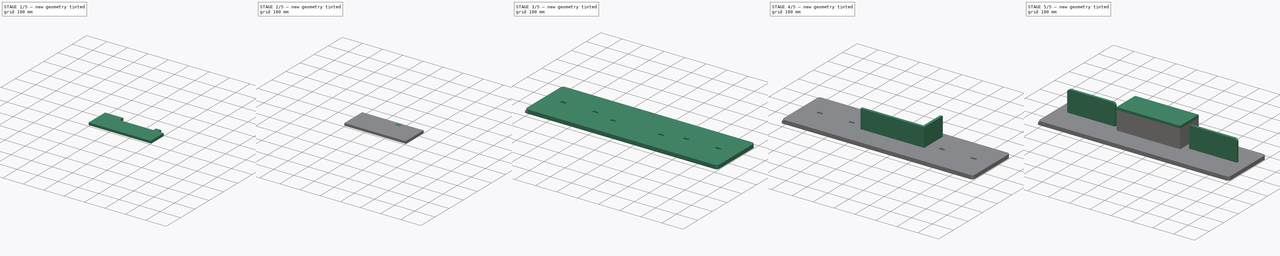
[diagram: build sequence overview — one tinted view per stage of 5, left to right]
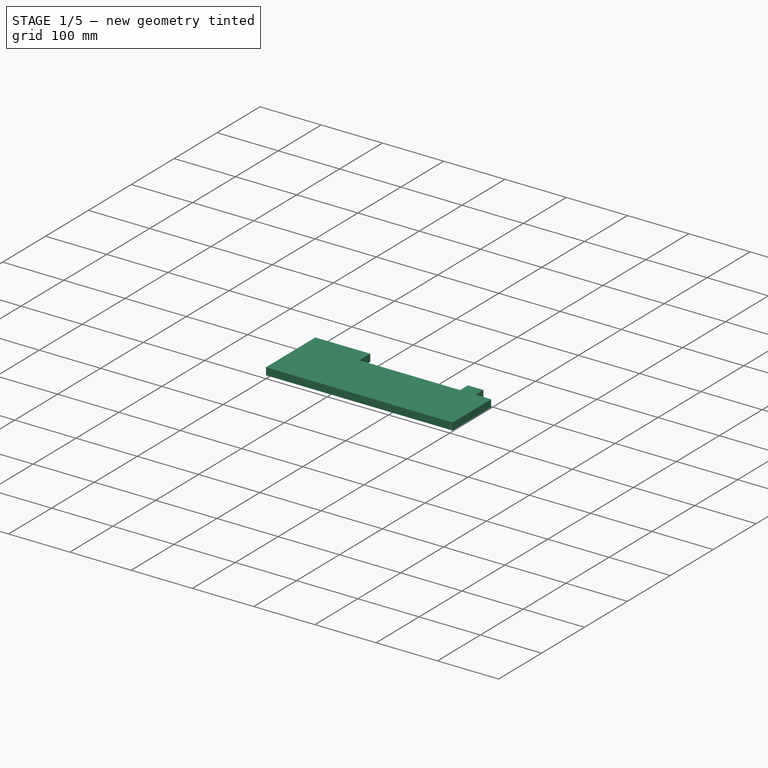
[diagram: stage 1 of 5 — iso view after this stage's code; geometry added in this stage tinted green]
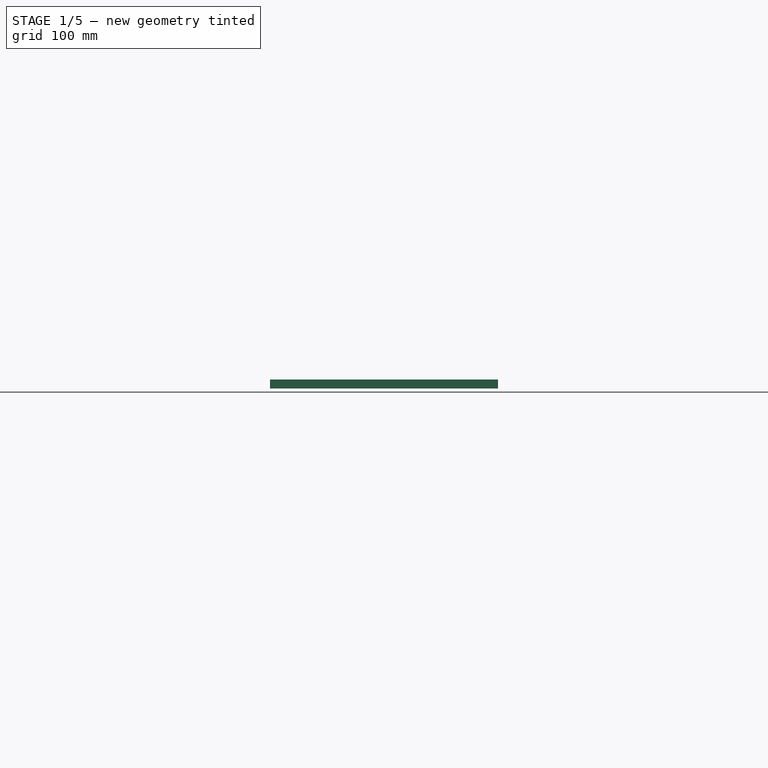
[diagram: stage 1 of 5 — front view after this stage's code; geometry added in this stage tinted green]
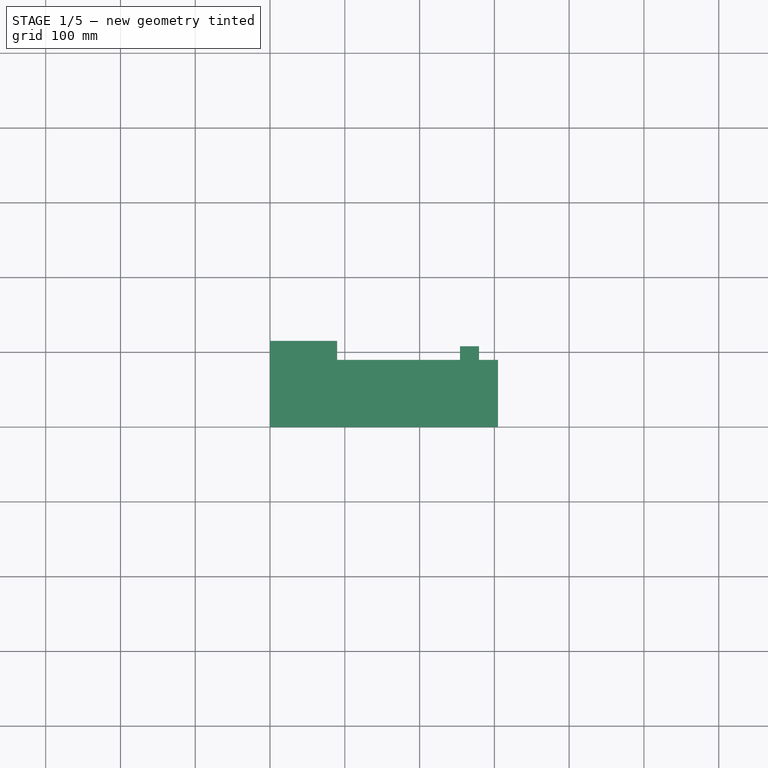
[diagram: stage 1 of 5 — top view after this stage's code; geometry added in this stage tinted green]
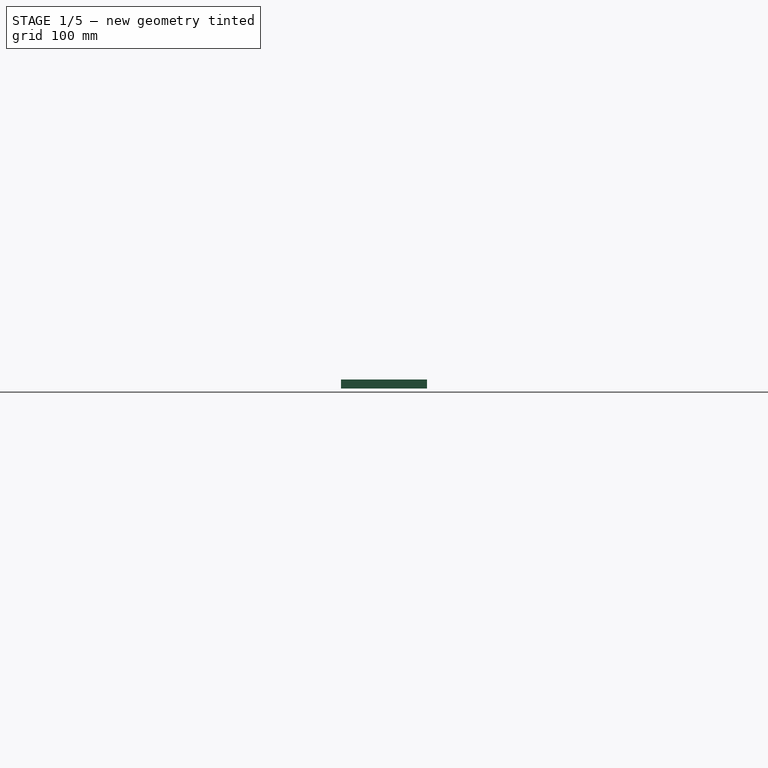
[diagram: stage 1 of 5 — right view after this stage's code; geometry added in this stage tinted green]
FCSTD DOCUMENT  (FreeCAD 0.18R13548 (Git))
Label: CoatHanger2
License: All rights reserved
LicenseURL: http://en.wikipedia.org/wiki/All_rights_reserved
objects: PartDesign::FeatureBase×14, Sketcher::SketchObject×5, PartDesign::Pad×5, PartDesign::Body×5, App::Part×2, Spreadsheet::Sheet×1, PartDesign::Fillet×1
note: 35 computed .brp shape members not serialized (recipe doc carries the construction recipe); baked Part::Feature solids carry a one-line shape summary decoded from their .brp

FEATURE [PartDesign::Body] Body002  label="BoxFrontBody"
  Group = -> [Sketch002,Pad002]
  Origin = -> Origin002
  Tip = -> Pad002
FEATURE [Sketcher::SketchObject] Sketch003  label="BoxSidesSketch"
  MapMode = 5
  Support = -> [XY_Plane003]
  expr: Constraints[10] = Dimensions.HeightBox - Dimensions.ThicknessBox
  expr: Constraints[9] = Dimensions.Depth - Dimensions.ThicknessBox
  sketch-geometry (4):
    g0: LineSegment StartX=0 StartY=0 StartZ=0 EndX=89.6937 EndY=0 EndZ=0
    g1: LineSegment StartX=89.6937 StartY=0 StartZ=0 EndX=89.6937 EndY=115.094 EndZ=0
    g2: LineSegment StartX=89.6937 StartY=115.094 StartZ=0 EndX=0 EndY=115.094 EndZ=0
    g3: LineSegment StartX=0 StartY=115.094 StartZ=0 EndX=0 EndY=0 EndZ=0
  constraints (11):
    c: Coincident(g0,g1)
    c: Coincident(g1,g2)
    c: Coincident(g2,g3)
    c: Coincident(g3,g0)
    c: Horizontal(g0)
    c: Horizontal(g2)
    c: Vertical(g1)
    c: Vertical(g3)
    c: Coincident(g0,g-1)
    c: DistanceX(g0,g0) = 89.6937
    c: DistanceY(g3,g3) = 115.094
FEATURE [PartDesign::Pad] Pad003  label="BoxSidesPad"
  Length = 11.9062
  Length2 = 100
  Profile = -> Sketch003
  Type = 0
  expr: Length = Dimensions.ThicknessBox
FEATURE [PartDesign::Body] Body003  label="BoxSidesBody"
  Group = -> [Sketch003,Pad003]
  Origin = -> Origin003
  Tip = -> Pad003
FEATURE [Sketcher::SketchObject] Sketch004  label="BoxBottomSketch"
  MapMode = 5
  Support = -> [XY_Plane004]
  expr: Constraints[10] = Dimensions.Depth - Dimensions.ThicknessBox
  expr: Constraints[9] = Dimensions.WidthBox
  expr: Constraints[27] = Dimensions.PlywoodThickness
  expr: Constraints[29] = Dimensions.LengthTab
  expr: Constraints[31] = Dimensions.OffsetTabToEdge
  sketch-geometry (12):
    g0: LineSegment StartX=0 StartY=0 StartZ=0 EndX=304.8 EndY=0 EndZ=0
    g1: LineSegment StartX=304.8 StartY=0 StartZ=0 EndX=304.8 EndY=89.6937 EndZ=0
    g2: LineSegment StartX=304.8 StartY=89.6937 StartZ=0 EndX=279.4 EndY=89.6937 EndZ=0
    g3: LineSegment StartX=0 StartY=89.6937 StartZ=0 EndX=0 EndY=0 EndZ=0
    g4: LineSegment StartX=25.4 StartY=89.6937 StartZ=0 EndX=25.4 EndY=107.95 EndZ=0
    g5: LineSegment StartX=25.4 StartY=107.95 StartZ=0 EndX=50.8 EndY=107.95 EndZ=0
    g6: LineSegment StartX=50.8 StartY=107.95 StartZ=0 EndX=50.8 EndY=89.6937 EndZ=0
    g7: LineSegment StartX=254 StartY=89.6937 StartZ=0 EndX=254 EndY=107.95 EndZ=0
    g8: LineSegment StartX=254 StartY=107.95 StartZ=0 EndX=279.4 EndY=107.95 EndZ=0
    g9: LineSegment StartX=279.4 StartY=107.95 StartZ=0 EndX=279.4 EndY=89.6937 EndZ=0
    g10: LineSegment StartX=25.4 StartY=89.6937 StartZ=0 EndX=0 EndY=89.6937 EndZ=0
    g11: LineSegment StartX=254 StartY=89.6937 StartZ=0 EndX=50.8 EndY=89.6937 EndZ=0
  constraints (33):
    c: Coincident(g0,g1)
    c: Coincident(g1,g2)
    c: Coincident(g10,g3)
    c: Coincident(g3,g0)
    c: Horizontal(g0)
    c: Horizontal(g2)
    c: Vertical(g1)
    c: Vertical(g3)
    c: Coincident(g0,g-1)
    c: DistanceX(g0,g0) = 304.8
    c: DistanceY(g3,g3) = 89.6937
    c: Vertical(g4)
    c: Coincident(g5,g4)
    c: Horizontal(g5)
    c: Coincident(g6,g5)
    c: Vertical(g6)
    c: Vertical(g7)
    c: Coincident(g8,g7)
    c: Horizontal(g8)
    c: Coincident(g9,g8)
    c: Vertical(g9)
    c: Coincident(g11,g6)
    c: Coincident(g10,g4)
    c: Tangent(g2,g10)
    c: Coincident(g2,g9)
    c: Coincident(g11,g7)
    c: Tangent(g2,g11)
    c: DistanceY(g4,g4) = 18.2563
    c: Equal(g4,g7)
    c: DistanceX(g5,g5) = 25.4
    c: Equal(g5,g8)
    c: DistanceX(g2,g2) = 25.4
    c: Equal(g2,g10)
FEATURE [PartDesign::Pad] Pad004  label="BoxBottomPad"
  Length = 11.9062
  Length2 = 100
  Profile = -> Sketch004
  Type = 0
  expr: Length = Dimensions.ThicknessBox
FEATURE [PartDesign::FeatureBase] Clone012  label="BoxSidesCutoutClone002"
  BaseFeature = -> Pad003
FEATURE [PartDesign::FeatureBase] Clone013  label="BoxBottomCutoutClone"
  BaseFeature = -> Pad004
FEATURE [App::Part] Part001  label="Cutout"
  Group = -> [Clone007,Clone008,Clone009,Clone010,Clone011,Clone012,Clone013]
  License = CC BY 3.0
  LicenseURL = http://creativecommons.org/licenses/by/3.0/
  Origin = -> Origin006
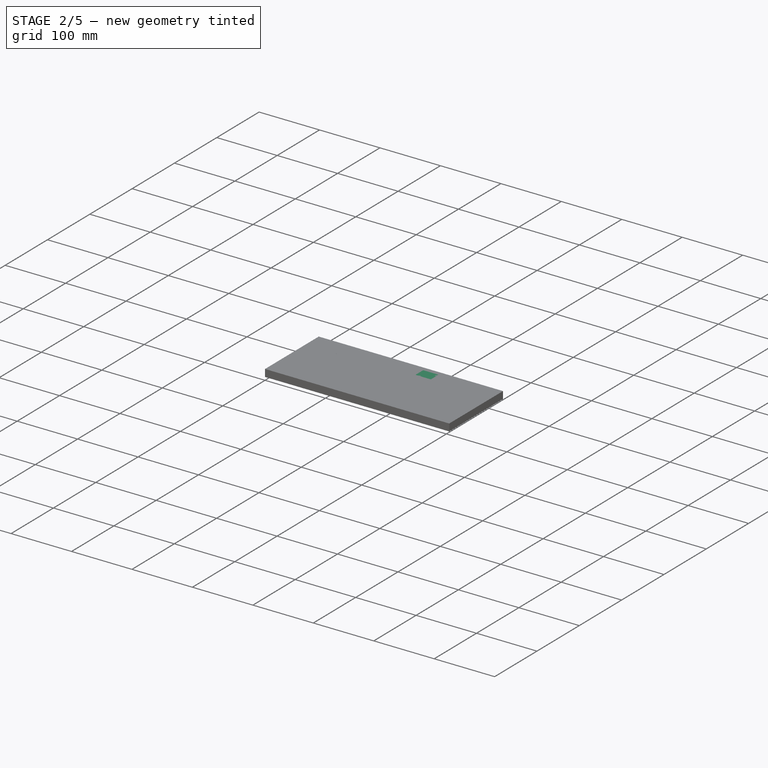
[diagram: stage 2 of 5 — iso view after this stage's code; geometry added in this stage tinted green]
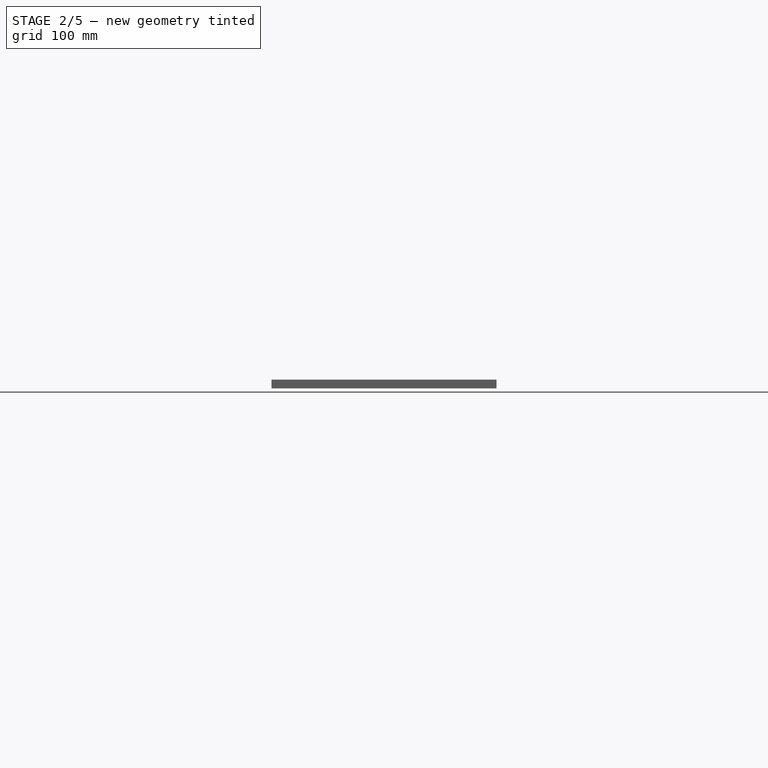
[diagram: stage 2 of 5 — front view after this stage's code; geometry added in this stage tinted green]
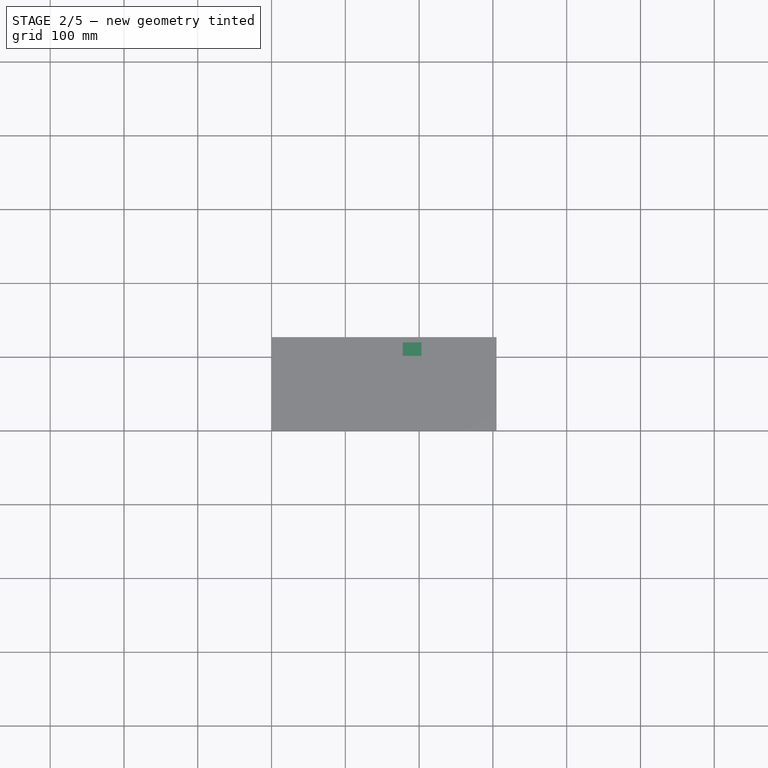
[diagram: stage 2 of 5 — top view after this stage's code; geometry added in this stage tinted green]
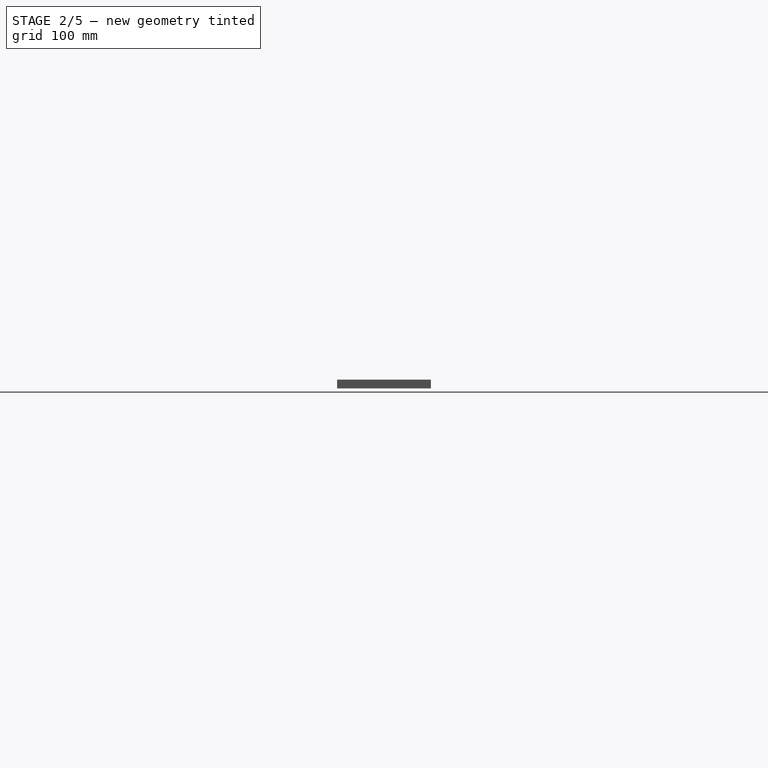
[diagram: stage 2 of 5 — right view after this stage's code; geometry added in this stage tinted green]
FEATURE [Sketcher::SketchObject] Sketch001
  MapMode = 5
  Support = -> [XY_Plane001]
  expr: Constraints[6] = Dimensions.Depth
  expr: Constraints[13] = Dimensions.WidthPlatform
  expr: Constraints[30] = Dimensions.LengthTab
  expr: Constraints[32] = Dimensions.PlywoodThickness
  expr: Constraints[34] = Dimensions.OffsetTabToEdge
  expr: Constraints[36] = Dimensions.FilletRadius
  expr: Constraints[37] = Dimensions.FilletRadius
  sketch-geometry (14):
    g0: LineSegment StartX=12.7 StartY=0 StartZ=0 EndX=215.9 EndY=0 EndZ=0
    g1: LineSegment StartX=228.6 StartY=12.7 StartZ=0 EndX=228.6 EndY=101.6 EndZ=0
    g2: LineSegment StartX=228.6 StartY=101.6 StartZ=0 EndX=203.2 EndY=101.6 EndZ=0
    g3: LineSegment StartX=0 StartY=101.6 StartZ=0 EndX=0 EndY=12.7 EndZ=0
    g4: ArcOfCircle CenterX=215.9 CenterY=12.7 CenterZ=0 NormalX=0 NormalY=0 NormalZ=1 AngleXU=0 Radius=12.7 StartAngle=4.71239 EndAngle=6.28319
    g5: ArcOfCircle CenterX=12.7 CenterY=12.7 CenterZ=0 NormalX=0 NormalY=0 NormalZ=1 AngleXU=0 Radius=12.7 StartAngle=3.14159 EndAngle=4.71239
    g6: LineSegment StartX=25.4 StartY=101.6 StartZ=0 EndX=25.4 EndY=119.856 EndZ=0
    g7: LineSegment StartX=25.4 StartY=119.856 StartZ=0 EndX=50.8 EndY=119.856 EndZ=0
    g8: LineSegment StartX=50.8 StartY=119.856 StartZ=0 EndX=50.8 EndY=101.6 EndZ=0
    g9: LineSegment StartX=177.8 StartY=101.6 StartZ=0 EndX=177.8 EndY=119.856 EndZ=0
    g10: LineSegment StartX=177.8 StartY=119.856 StartZ=0 EndX=203.2 EndY=119.856 EndZ=0
    g11: LineSegment StartX=203.2 StartY=119.856 StartZ=0 EndX=203.2 EndY=101.6 EndZ=0
    g12: LineSegment StartX=25.4 StartY=101.6 StartZ=0 EndX=0 EndY=101.6 EndZ=0
    g13: LineSegment StartX=177.8 StartY=101.6 StartZ=0 EndX=50.8 EndY=101.6 EndZ=0
  constraints (38):
    c: Coincident(g1,g2)
    c: Coincident(g12,g3)
    c: Horizontal(g0)
    c: Horizontal(g2)
    c: Vertical(g1)
    c: Vertical(g3)
    c: DistanceY(g-1,g3) = 101.6
    c: Tangent(g0,g4) = -1.5708
    c: Tangent(g1,g4) = -1.5708
    c: Tangent(g3,g5) = -1.5708
    c: Tangent(g0,g5) = -1.5708
    c: DistanceX(g-1,g3) = 0
    c: DistanceY(g-1,g0) = 0
    c: DistanceX(g3,g1) = 228.6
    c: Vertical(g6)
    c: Coincident(g7,g6)
    c: Horizontal(g7)
    c: Coincident(g8,g7)
    c: Vertical(g8)
    c: Vertical(g9)
    c: Coincident(g10,g9)
    c: Horizontal(g10)
    c: Coincident(g11,g10)
    c: Coincident(g13,g8)
    c: Coincident(g12,g6)
    c: Tangent(g2,g12)
    c: Coincident(g2,g11)
    c: Coincident(g13,g9)
    c: Tangent(g2,g13)
    c: Vertical(g11)
    c: DistanceX(g10,g10) = 25.4
    c: Equal(g7,g10)
    c: DistanceY(g11,g11) = 18.2563
    c: Equal(g8,g9)
    c: DistanceX(g2,g2) = 25.4
    c: Equal(g2,g12)
    c: Radius(g4) = 12.7
    c: Radius(g5) = 12.7
FEATURE [PartDesign::Pad] Pad001  label="ShelfPad"
  Length = 11.9062
  Length2 = 100
  Profile = -> Sketch001
  Type = 0
  expr: Length = Dimensions.ThicknessBox
FEATURE [PartDesign::Body] Body001  label="ShelfBody"
  Group = -> [Sketch001,Pad001]
  Origin = -> Origin001
  Tip = -> Pad001
FEATURE [Sketcher::SketchObject] Sketch002
  MapMode = 5
  Support = -> [XY_Plane002]
  expr: Constraints[10] = Dimensions.HeightBox
  expr: Constraints[9] = Dimensions.WidthBox
  sketch-geometry (4):
    g0: LineSegment StartX=0 StartY=0 StartZ=0 EndX=304.8 EndY=0 EndZ=0
    g1: LineSegment StartX=304.8 StartY=0 StartZ=0 EndX=304.8 EndY=127 EndZ=0
    g2: LineSegment StartX=304.8 StartY=127 StartZ=0 EndX=0 EndY=127 EndZ=0
    g3: LineSegment StartX=0 StartY=127 StartZ=0 EndX=0 EndY=0 EndZ=0
  constraints (11):
    c: Coincident(g0,g1)
    c: Coincident(g1,g2)
    c: Coincident(g2,g3)
    c: Coincident(g3,g0)
    c: Horizontal(g0)
    c: Horizontal(g2)
    c: Vertical(g1)
    c: Vertical(g3)
    c: Coincident(g0,g-1)
    c: DistanceX(g0,g0) = 304.8
    c: DistanceY(g3,g3) = 127
FEATURE [PartDesign::Pad] Pad002  label="BoxFrontPad"
  Length = 11.9062
  Length2 = 100
  Profile = -> Sketch002
  Type = 0
  expr: Length = Dimensions.ThicknessBox
FEATURE [PartDesign::FeatureBase] Clone010  label="BoxFrontCutoutClone"
  BaseFeature = -> Pad002
FEATURE [PartDesign::FeatureBase] Clone011  label="BoxSidesCutoutClone001"
  BaseFeature = -> Pad003
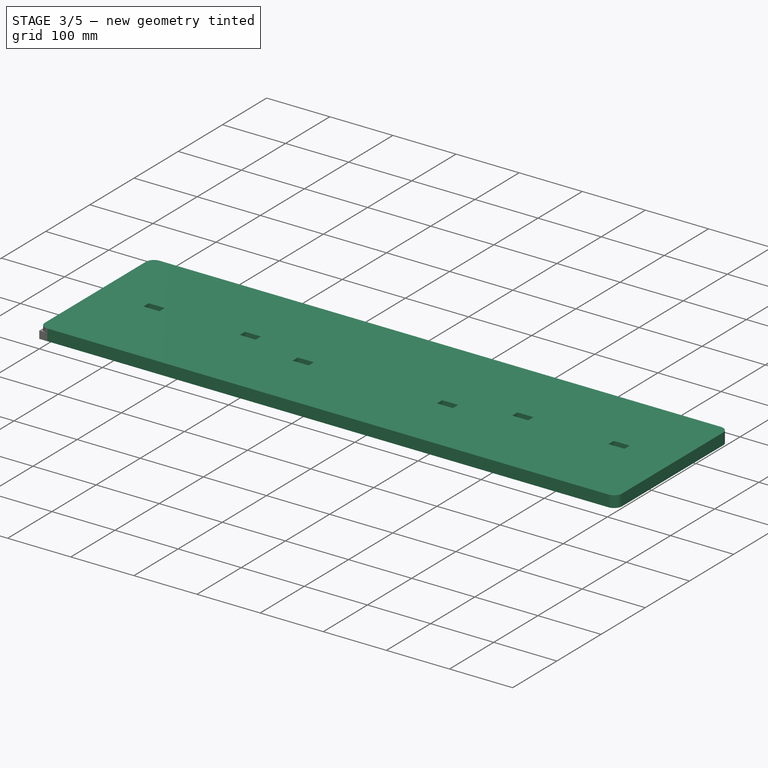
[diagram: stage 3 of 5 — iso view after this stage's code; geometry added in this stage tinted green]
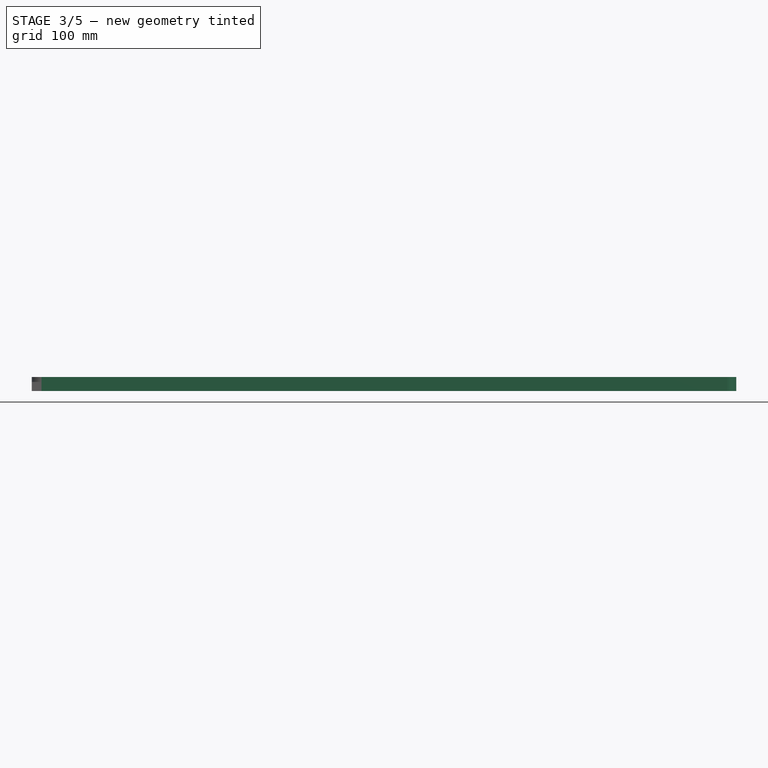
[diagram: stage 3 of 5 — front view after this stage's code; geometry added in this stage tinted green]
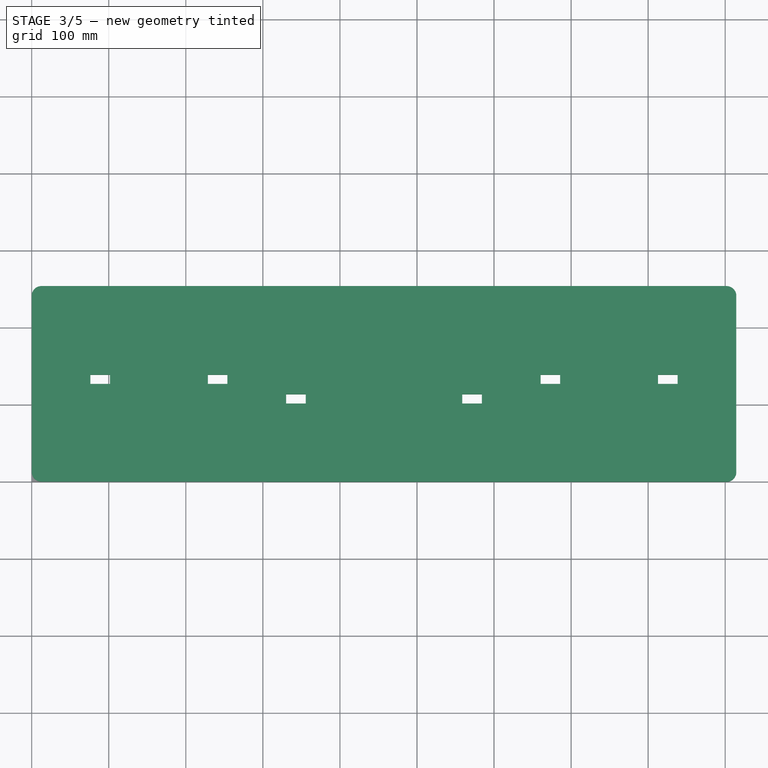
[diagram: stage 3 of 5 — top view after this stage's code; geometry added in this stage tinted green]
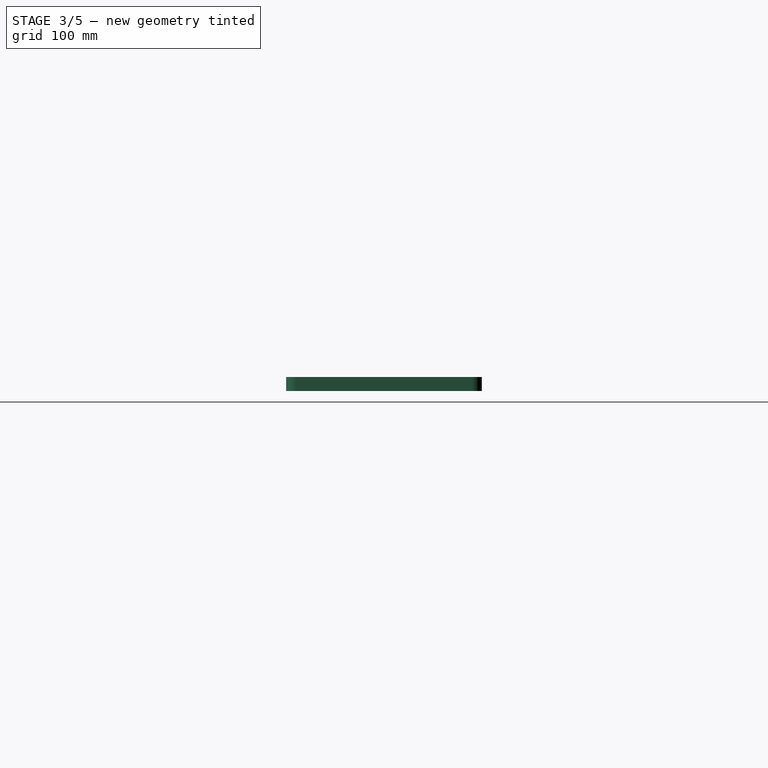
[diagram: stage 3 of 5 — right view after this stage's code; geometry added in this stage tinted green]
FEATURE [Sketcher::SketchObject] Sketch  label="BackSketch"
  MapMode = 5
  Support = -> [XY_Plane]
  expr: Constraints[43] = Dimensions.DistanceFromSidesPlatform + Dimensions.OffsetTabToEdge
  expr: Constraints[45] = Dimensions.ThicknessBox
  expr: Constraints[80] = Dimensions.DistanceFromSidesPlatform + Dimensions.OffsetTabToEdge
  expr: Constraints[10] = Dimensions.Height
  expr: Constraints[9] = Dimensions.Width
  expr: Constraints[81] = Dimensions.DistanceFromBottomPlatform
  expr: Constraints[53] = Dimensions.ThicknessBox
  expr: Constraints[74] = Dimensions.DistancBetweenShelfTabs
  expr: Constraints[49] = Dimensions.LengthTab
  expr: Constraints[47] = Dimensions.DistanceFromBottomPlatform
  expr: Constraints[48] = Dimensions.ThicknessBox
  expr: Constraints[51] = Dimensions.SidesToBoxTabs
  expr: Constraints[54] = Dimensions.DistanceFromBottomBox
  expr: Constraints[52] = Dimensions.LengthTab
  expr: Constraints[44] = Dimensions.LengthTab
  expr: Constraints[78] = Dimensions.LengthTab
  expr: Constraints[82] = Dimensions.DistanceBetweenBoxTabs
  expr: Constraints[50] = Dimensions.DistancBetweenShelfTabs
  expr: Constraints[46] = Dimensions.DistanceFromBottomPlatform
  expr: Constraints[79] = Dimensions.ThicknessBox
  sketch-geometry (28):
    g0: LineSegment StartX=0 StartY=0 StartZ=0 EndX=914.4 EndY=0 EndZ=0
    g1: LineSegment StartX=914.4 StartY=0 StartZ=0 EndX=914.4 EndY=254 EndZ=0
    g2: LineSegment StartX=914.4 StartY=254 StartZ=0 EndX=0 EndY=254 EndZ=0
    g3: LineSegment StartX=0 StartY=254 StartZ=0 EndX=0 EndY=0 EndZ=0
    g4: LineSegment StartX=76.2 StartY=127 StartZ=0 EndX=101.6 EndY=127 EndZ=0
    g5: LineSegment StartX=101.6 StartY=127 StartZ=0 EndX=101.6 EndY=138.906 EndZ=0
    g6: LineSegment StartX=101.6 StartY=138.906 StartZ=0 EndX=76.2 EndY=138.906 EndZ=0
    g7: LineSegment StartX=76.2 StartY=138.906 StartZ=0 EndX=76.2 EndY=127 EndZ=0
    g8: LineSegment StartX=228.6 StartY=127 StartZ=0 EndX=254 EndY=127 EndZ=0
    g9: LineSegment StartX=254 StartY=127 StartZ=0 EndX=254 EndY=138.906 EndZ=0
    g10: LineSegment StartX=254 StartY=138.906 StartZ=0 EndX=228.6 EndY=138.906 EndZ=0
    g11: LineSegment StartX=228.6 StartY=138.906 StartZ=0 EndX=228.6 EndY=127 EndZ=0
    g12: LineSegment StartX=330.2 StartY=113.506 StartZ=0 EndX=355.6 EndY=113.506 EndZ=0
    g13: LineSegment StartX=355.6 StartY=113.506 StartZ=0 EndX=355.6 EndY=101.6 EndZ=0
    g14: LineSegment StartX=355.6 StartY=101.6 StartZ=0 EndX=330.2 EndY=101.6 EndZ=0
    g15: LineSegment StartX=330.2 StartY=101.6 StartZ=0 EndX=330.2 EndY=113.506 EndZ=0
    g16: LineSegment StartX=584.2 StartY=113.506 StartZ=0 EndX=558.8 EndY=113.506 EndZ=0
    g17: LineSegment StartX=558.8 StartY=113.506 StartZ=0 EndX=558.8 EndY=101.6 EndZ=0
    g18: LineSegment StartX=558.8 StartY=101.6 StartZ=0 EndX=584.2 EndY=101.6 EndZ=0
    g19: LineSegment StartX=584.2 StartY=101.6 StartZ=0 EndX=584.2 EndY=113.506 EndZ=0
    g20: LineSegment StartX=660.4 StartY=127 StartZ=0 EndX=685.8 EndY=127 EndZ=0
    g21: LineSegment StartX=685.8 StartY=127 StartZ=0 EndX=685.8 EndY=138.906 EndZ=0
    g22: LineSegment StartX=685.8 StartY=138.906 StartZ=0 EndX=660.4 EndY=138.906 EndZ=0
    g23: LineSegment StartX=660.4 StartY=138.906 StartZ=0 EndX=660.4 EndY=127 EndZ=0
    g24: LineSegment StartX=812.8 StartY=127 StartZ=0 EndX=838.2 EndY=127 EndZ=0
    g25: LineSegment StartX=838.2 StartY=127 StartZ=0 EndX=838.2 EndY=138.906 EndZ=0
    g26: LineSegment StartX=838.2 StartY=138.906 StartZ=0 EndX=812.8 EndY=138.906 EndZ=0
    g27: LineSegment StartX=812.8 StartY=138.906 StartZ=0 EndX=812.8 EndY=127 EndZ=0
  constraints (83):
    c: Coincident(g0,g1)
    c: Coincident(g1,g2)
    c: Coincident(g2,g3)
    c: Coincident(g3,g0)
    c: Horizontal(g0)
    c: Horizontal(g2)
    c: Vertical(g1)
    c: Vertical(g3)
    c: Coincident(g0,g-1)
    c: DistanceX(g0,g0) = 914.4
    c: DistanceY(g3,g3) = 254
    c: Coincident(g4,g5)
    c: Coincident(g5,g6)
    c: Coincident(g6,g7)
    c: Coincident(g7,g4)
    c: Horizontal(g4)
    c: Horizontal(g6)
    c: Vertical(g5)
    c: Vertical(g7)
    c: Coincident(g8,g9)
    c: Coincident(g9,g10)
    c: Coincident(g10,g11)
    c: Coincident(g11,g8)
    c: Horizontal(g8)
    c: Horizontal(g10)
    c: Vertical(g9)
    c: Vertical(g11)
    c: Coincident(g12,g13)
    c: Coincident(g13,g14)
    c: Coincident(g14,g15)
    c: Coincident(g15,g12)
    c: Horizontal(g12)
    c: Horizontal(g14)
    c: Vertical(g13)
    c: Vertical(g15)
    c: Coincident(g16,g17)
    c: Coincident(g17,g18)
    c: Coincident(g18,g19)
    c: Coincident(g19,g16)
    c: Horizontal(g16)
    c: Horizontal(g18)
    c: Vertical(g17)
    c: Vertical(g19)
    c: DistanceX(g-1,g4) = 76.2
    c: DistanceX(g4,g4) = 25.4
    c: DistanceY(g5,g5) = 11.9062
    c: DistanceY(g-1,g4) = 127
    c: DistanceY(g-1,g8) = 127
    c: DistanceY(g11,g11) = 11.9062
    c: DistanceX(g10,g10) = 25.4
    c: DistanceX(g4,g8) = 127
    c: DistanceX(g-1,g14) = 330.2
    c: DistanceX(g14,g14) = 25.4
    c: DistanceY(g15,g15) = 11.9062
    c: DistanceY(g-1,g14) = 101.6
    c: Equal(g14,g18)
    c: Equal(g19,g13)
    c: DistanceY(g13,g18) = 0
    c: Coincident(g20,g21)
    c: Coincident(g21,g22)
    c: Coincident(g22,g23)
    c: Coincident(g23,g20)
    c: Horizontal(g20)
    c: Horizontal(g22)
    c: Vertical(g21)
    c: Vertical(g23)
    c: Coincident(g24,g25)
    c: Coincident(g25,g26)
    c: Coincident(g26,g27)
    c: Coincident(g27,g24)
    c: Horizontal(g24)
    c: Horizontal(g26)
    c: Vertical(g25)
    c: Vertical(g27)
    c: DistanceX(g20,g24) = 127
    c: DistanceY(g20,g24) = 0
    c: Equal(g20,g24)
    c: Equal(g21,g27)
    c: DistanceX(g22,g22) = 25.4
    c: DistanceY(g23,g23) = 11.9062
    c: DistanceX(g24,g0) = 76.2
    c: DistanceY(g0,g24) = 127
    c: DistanceX(g13,g17) = 203.2
FEATURE [Spreadsheet::Sheet] Spreadsheet  label="Dimensions"
  cells = A1=InToMm; B1(InToMm)=25.399999999999999; A2=Width; B2(Width)==36 * InToMm; A3=PlywoodThickness; B3(PlywoodThickness)==23 / 32 * InToMm; A4=Height; B4(Height)==10 * InToMm; A5=HeightBox; B5(HeightBox)==5 * InToMm; A6=WidthBox; B6(WidthBox)==12 * InToMm; A7=WidthPlatform; B7(WidthPlatform)==9 * InToMm; A8=Depth; B8(Depth)==4 * InToMm; A9=ThicknessBox; B9(ThicknessBox)==15 / 32 * InToMm; A10=LengthTab; B10(LengthTab)==1 * InToMm; A11=OffsetTabToEdge; B11(OffsetTabToEdge)==1 * InToMm; A12=DistancBetweenShelfTabs; B12(DistancBetweenShelfTabs)==WidthPlatform - 2 * (OffsetTabToEdge + LengthTab); A13=DistanceBetweenBoxTabs; B13(DistanceBetweenBoxTabs)==WidthBox - 2 * (OffsetTabToEdge + LengthTab); A14=DistanceFromBottomPlatform; B14(DistanceFromBottomPlatform)==5 * InToMm; A15=DistanceFromBottomBox; B15(DistanceFromBottomBox)==4 * InToMm; A16=DistanceFromSidesPlatform; B16(DistanceFromSidesPlatform)==2 * InToMm; A17=SidesToBoxTabs; B17(SidesToBoxTabs)==(Width - DistanceBetweenBoxTabs) / 2 - LengthTab; A18=FilletRadius; B18(FilletRadius)==0.5 * InToMm
FEATURE [PartDesign::Pad] Pad  label="BackPad"
  Length = 18.2563
  Length2 = 100
  Profile = -> Sketch
  Type = 0
  expr: Length = Dimensions.PlywoodThickness
FEATURE [PartDesign::Fillet] Fillet
  Base = -> Pad [Edge1,Edge8,Edge5,Edge2]
  BaseFeature = -> Pad
  Radius = 12.7
  expr: Radius = Dimensions.FilletRadius
FEATURE [PartDesign::FeatureBase] Clone008  label="ShelfCutoutClone001"
  BaseFeature = -> Pad001
FEATURE [PartDesign::FeatureBase] Clone009  label="ShelfCutoutClone002"
  BaseFeature = -> Pad001
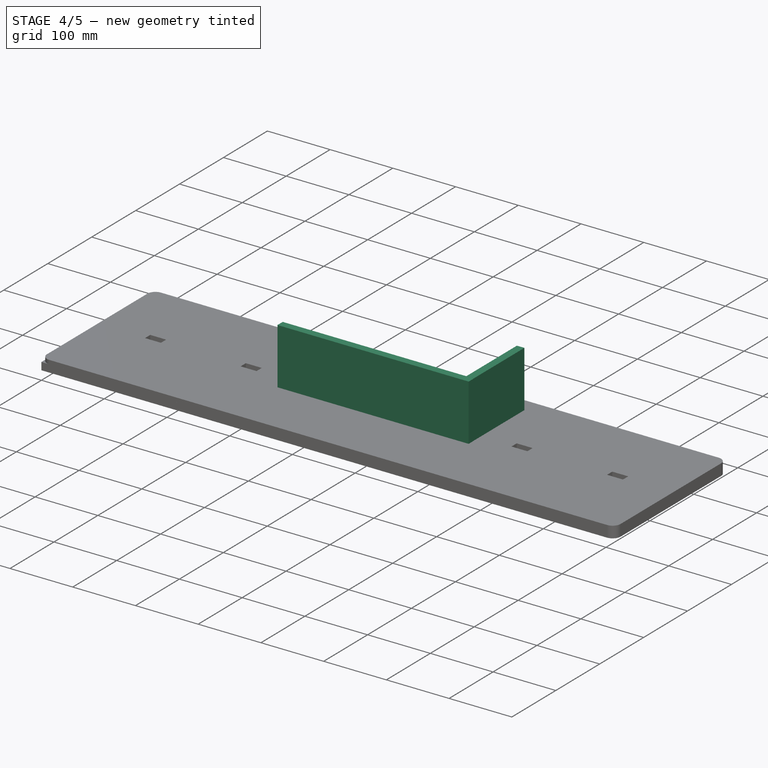
[diagram: stage 4 of 5 — iso view after this stage's code; geometry added in this stage tinted green]
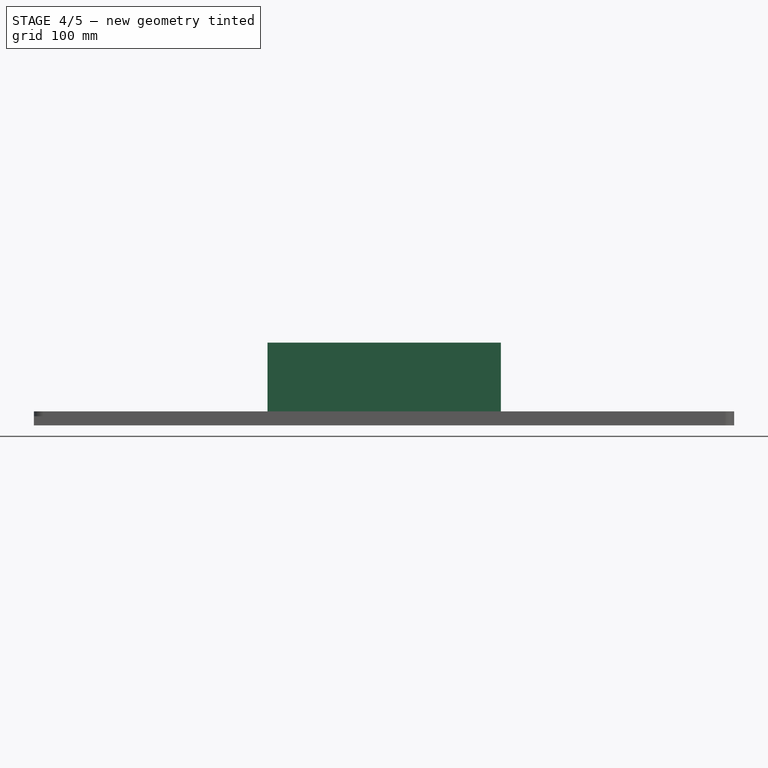
[diagram: stage 4 of 5 — front view after this stage's code; geometry added in this stage tinted green]
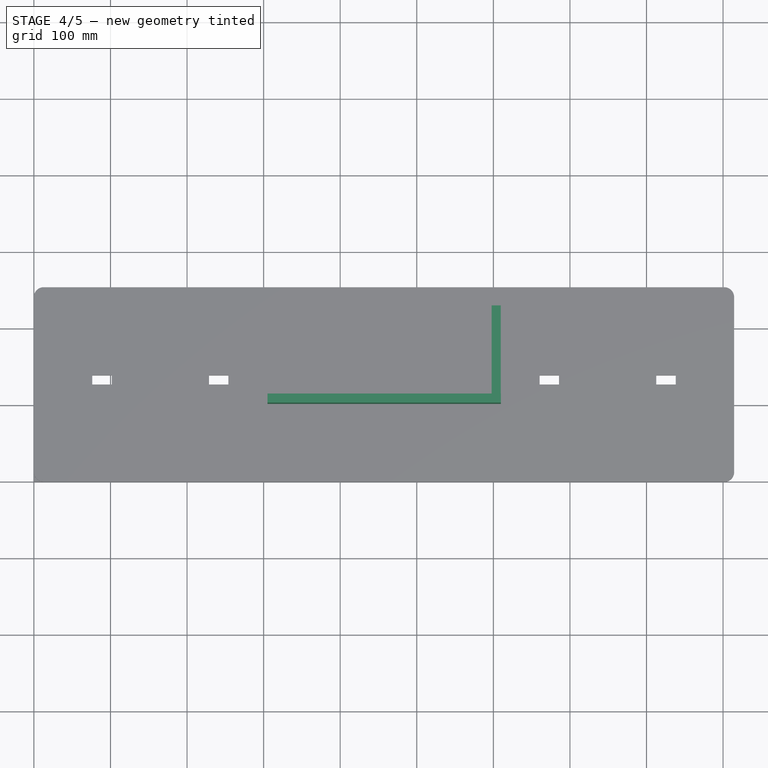
[diagram: stage 4 of 5 — top view after this stage's code; geometry added in this stage tinted green]
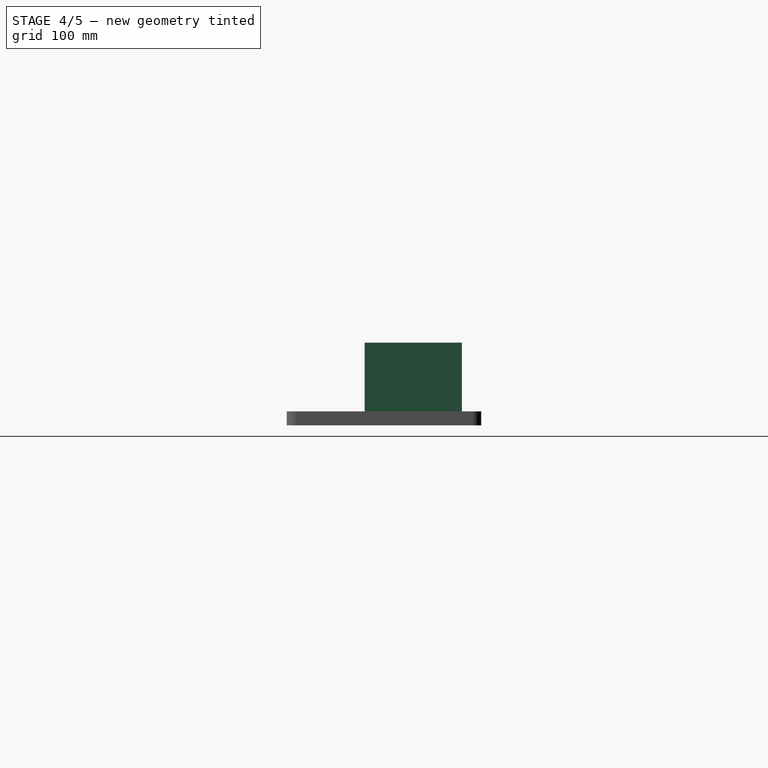
[diagram: stage 4 of 5 — right view after this stage's code; geometry added in this stage tinted green]
FEATURE [PartDesign::FeatureBase] Clone005  label="BoxSidesAssemblyClone002"
  BaseFeature = -> Pad003
  Placement = pos=(609.698,113.679,18.2563) rot=(0,-1,0;1.5708rad)
FEATURE [PartDesign::FeatureBase] Clone006  label="BoxBottomAssemblyClone"
  BaseFeature = -> Pad004
  Placement = pos=(305.088,101.664,107.95) rot=(-1,0,0;1.5708rad)
FEATURE [PartDesign::Body] Body  label="BackBody"
  Group = -> [Sketch,Pad,Fillet]
  Origin = -> Origin
  Tip = -> Fillet
FEATURE [PartDesign::FeatureBase] Clone  label="BackAssemblyClone"
  BaseFeature = -> Body
FEATURE [App::Part] Part  label="Assembly"
  Group = -> [Clone001,Clone002,Clone003,Clone004,Clone005,Clone006,Clone]
  License = CC BY 3.0
  LicenseURL = http://creativecommons.org/licenses/by/3.0/
  Origin = -> Origin005
FEATURE [PartDesign::FeatureBase] Clone007  label="BackCutoutClone"
  BaseFeature = -> Fillet
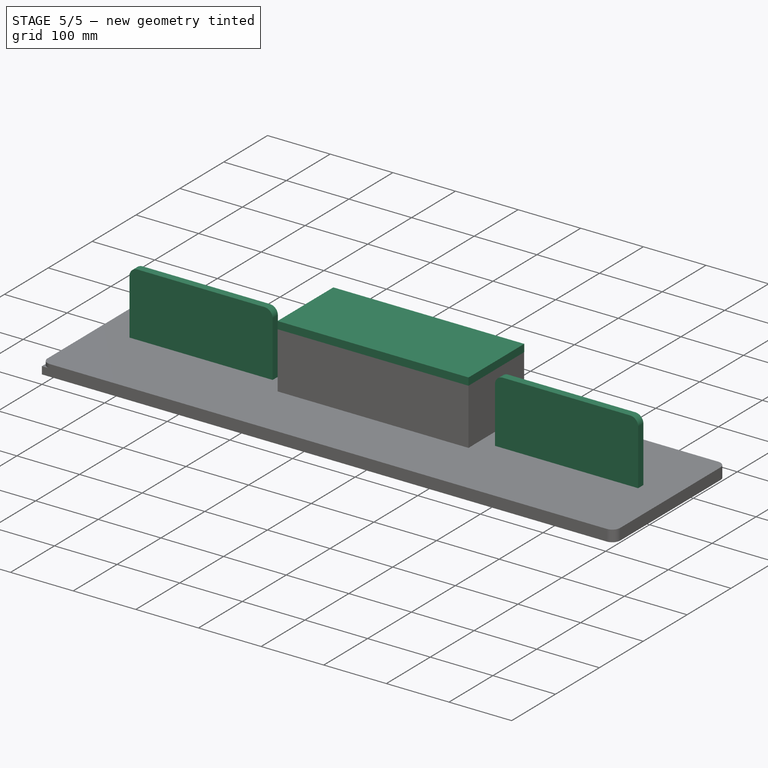
[diagram: stage 5 of 5 — iso view after this stage's code; geometry added in this stage tinted green]
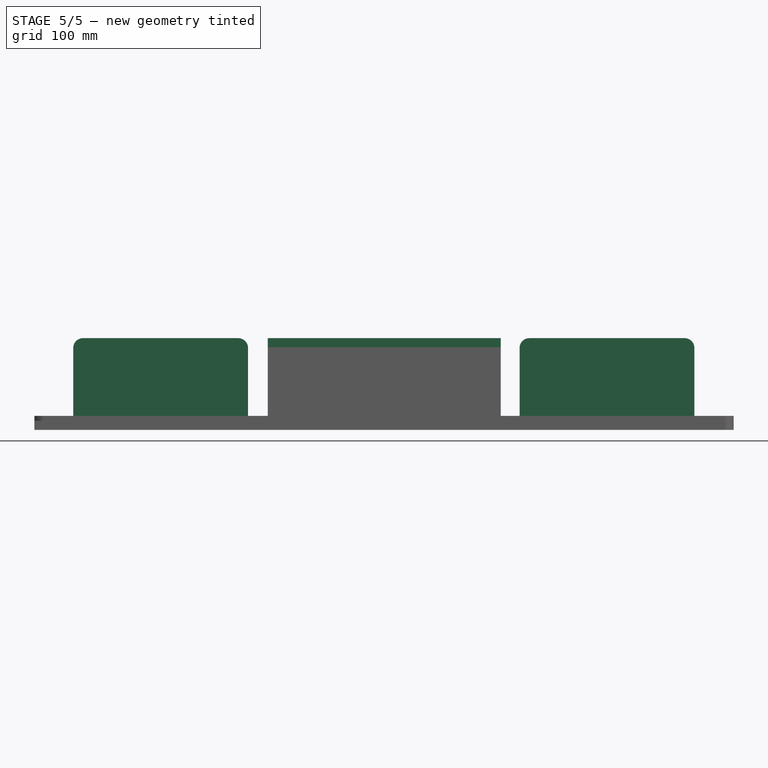
[diagram: stage 5 of 5 — front view after this stage's code; geometry added in this stage tinted green]
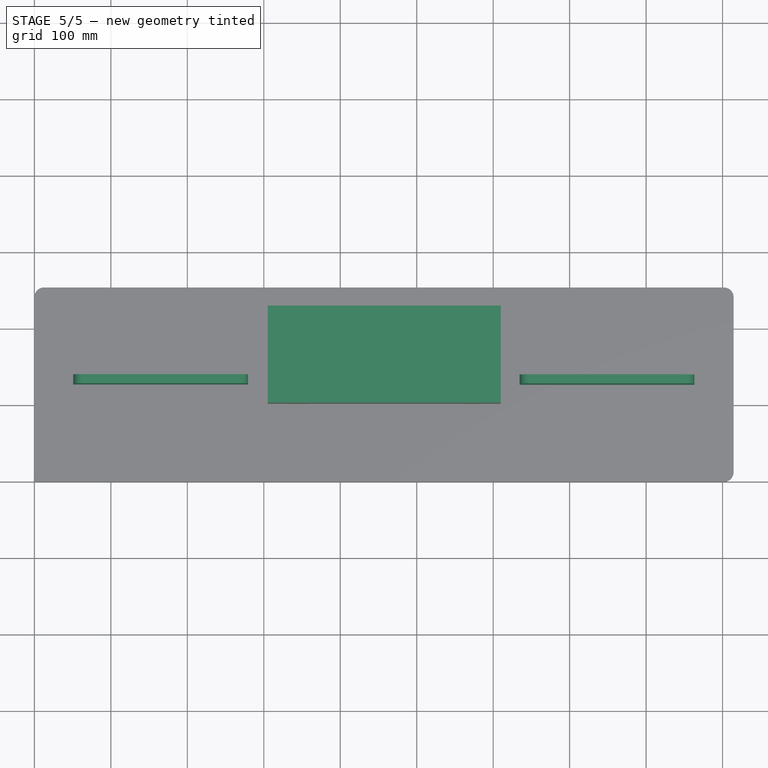
[diagram: stage 5 of 5 — top view after this stage's code; geometry added in this stage tinted green]
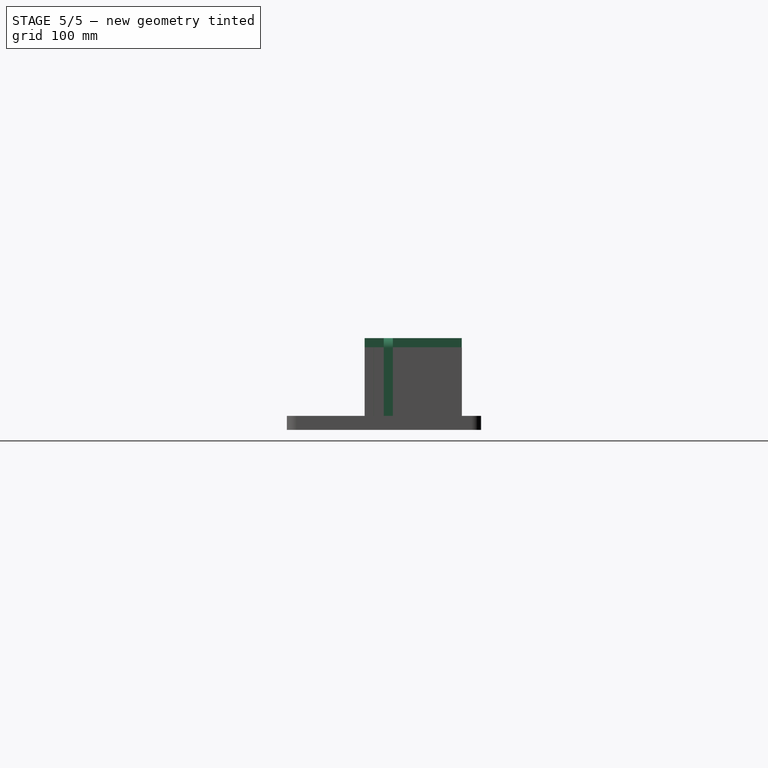
[diagram: stage 5 of 5 — right view after this stage's code; geometry added in this stage tinted green]
FEATURE [PartDesign::Body] Body004  label="BoxBottomBody"
  Group = -> [Sketch004,Pad004]
  Origin = -> Origin004
  Tip = -> Pad004
FEATURE [PartDesign::FeatureBase] Clone001  label="ShelfAssemblyClone001"
  BaseFeature = -> Pad001
  Placement = pos=(50.8,127,119.856) rot=(-1,0,0;1.5708rad)
FEATURE [PartDesign::FeatureBase] Clone002  label="ShelfAssemblyClone002"
  BaseFeature = -> Pad001
  Placement = pos=(634.517,126.753,119.856) rot=(-1,0,0;1.5708rad)
FEATURE [PartDesign::FeatureBase] Clone003  label="BoxFrontAssemblyClone"
  BaseFeature = -> Pad002
  Placement = pos=(305.088,101.664,107.95) rot=(0,0,1;0rad)
FEATURE [PartDesign::FeatureBase] Clone004  label="BoxSidesAssemblyClone001"
  BaseFeature = -> Pad003
  Placement = pos=(316.994,113.57,18.2563) rot=(0,-1,0;1.5708rad)
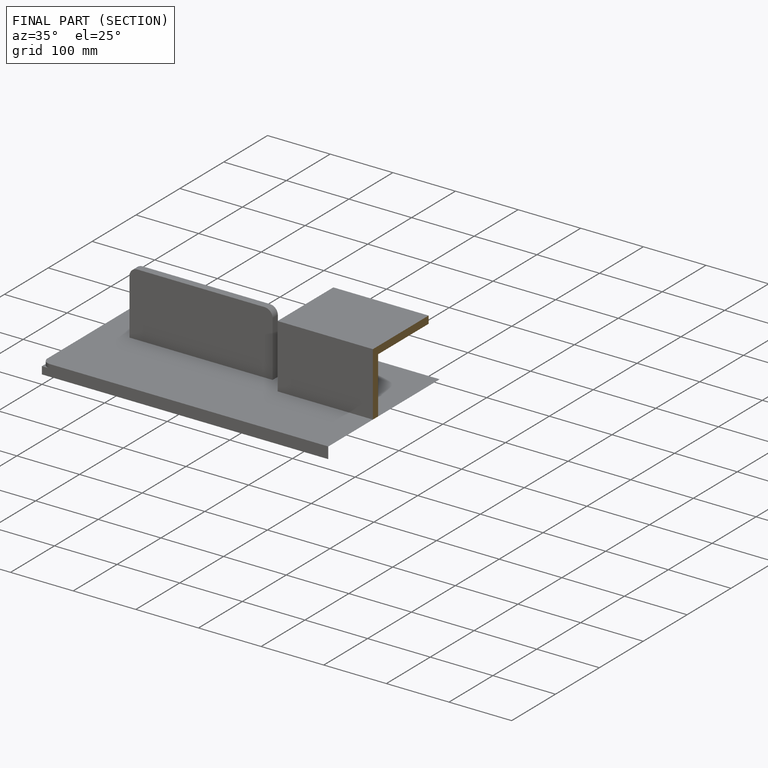
[diagram: finished part — half-section view (interior)]
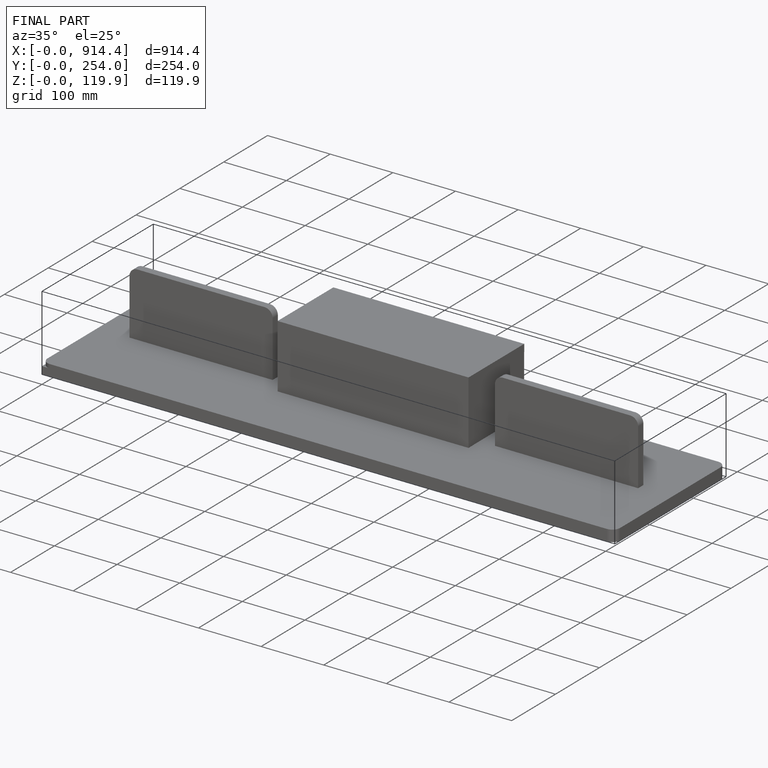
[diagram: finished part — iso view with bounding-box wireframe]
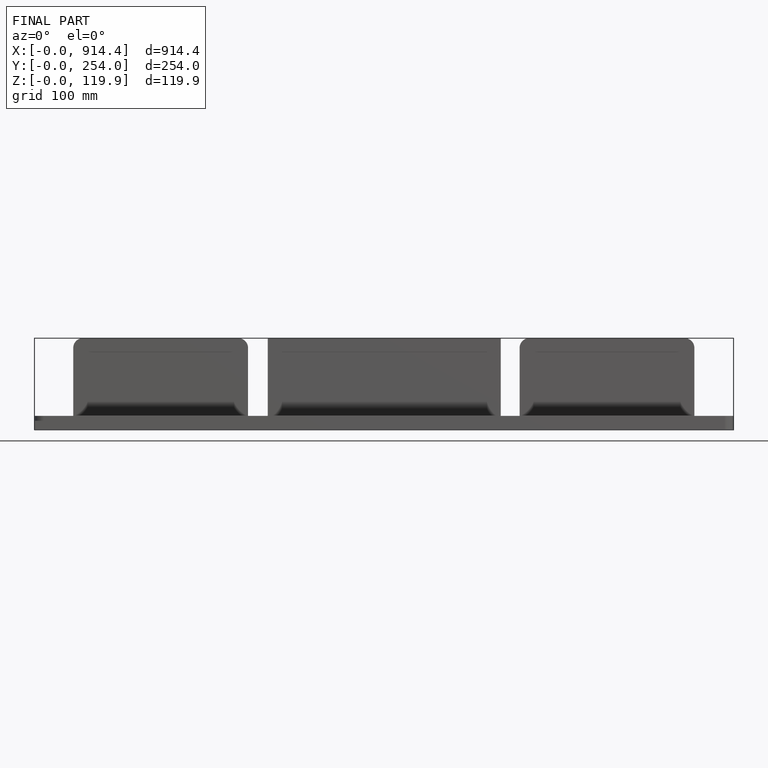
[diagram: finished part — front view with bounding-box wireframe]
